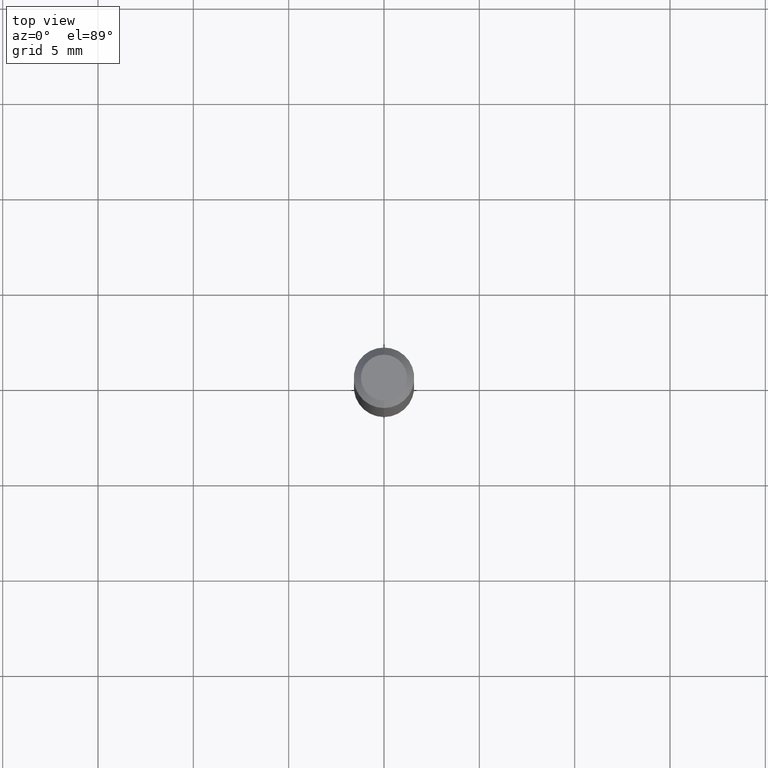
[diagram: clean part render]
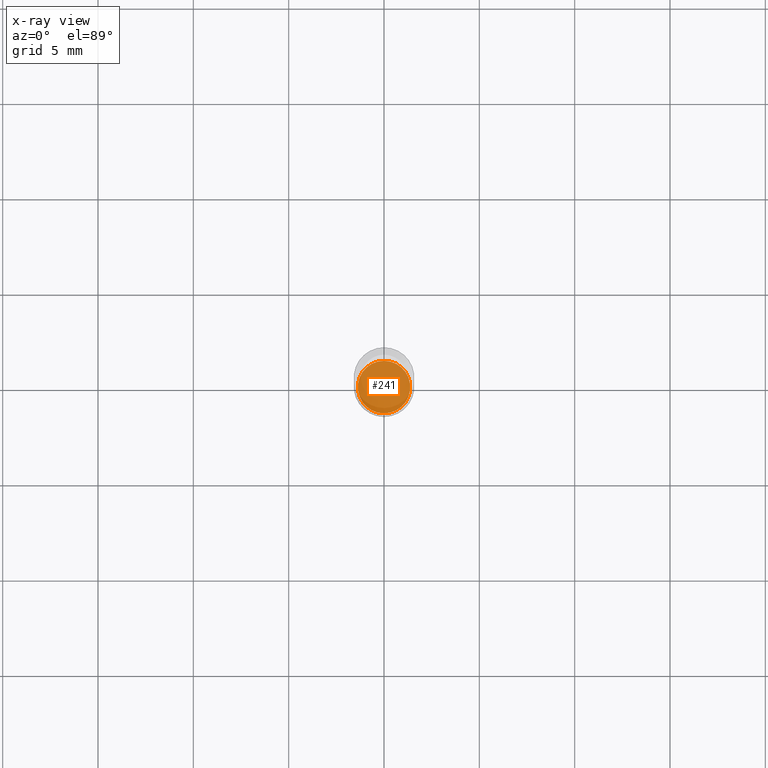
[diagram: x-ray — body ghosted, one internal face saturated and labeled with its STEP entity id]
A machine part, top view, then the same camera in x-ray: the body is ghosted and one INTERNAL B-rep face — a face not visible from any outside direction — is saturated and labeled: STEP entity #241.
In plain terms, the highlighted planar face has unit normal (-0, 0, 1).
Its self-contained STEP definition (entity closure, byte-faithful):
#39 = EDGE_CURVE ( 'NONE', #270, #52, #73, .T. ) ;
#42 = CIRCLE ( 'NONE', #417, 0.05419999999999999818 ) ;
#52 = VERTEX_POINT ( 'NONE', #441 ) ;
#58 = CARTESIAN_POINT ( 'NONE',  ( 2.750791567104804618E-29, -3.928433249406443724E-15, -1.125000000000000222 ) ) ;
#73 = CIRCLE ( 'NONE', #356, 0.05419999999999999818 ) ;
#105 = FACE_OUTER_BOUND ( 'NONE', #276, .T. ) ;
#114 = DIRECTION ( 'NONE',  ( -2.445148059648714686E-29, 3.491940666139061088E-15, 1.000000000000000000 ) ) ;
#121 = DIRECTION ( 'NONE',  ( -6.982962677686266711E-15, -1.000000000000000000, 2.520154975705040126E-15 ) ) ;
#175 = PLANE ( 'NONE',  #366 ) ;
#180 = DIRECTION ( 'NONE',  ( -2.445148059648714406E-29, 3.491940666139060694E-15, 1.000000000000000000 ) ) ;
#221 = CARTESIAN_POINT ( 'NONE',  ( -3.784765771305681686E-16, -0.05420000000000392559, -1.125000000000000000 ) ) ;
#227 = ORIENTED_EDGE ( 'NONE', *, *, #39, .F. ) ;
#241 = ADVANCED_FACE ( 'NONE', ( #105 ), #175, .F. ) ;
#248 = CARTESIAN_POINT ( 'NONE',  ( 2.750791567104804618E-29, -3.928433249406443724E-15, -1.125000000000000222 ) ) ;
#270 = VERTEX_POINT ( 'NONE', #221 ) ;
#276 = EDGE_LOOP ( 'NONE', ( #227, #340 ) ) ;
#340 = ORIENTED_EDGE ( 'NONE', *, *, #477, .F. ) ;
#356 = AXIS2_PLACEMENT_3D ( 'NONE', #58, #440, #121 ) ;
#366 = AXIS2_PLACEMENT_3D ( 'NONE', #462, #180, #492 ) ;
#417 = AXIS2_PLACEMENT_3D ( 'NONE', #248, #114, #433 ) ;
#433 = DIRECTION ( 'NONE',  ( -6.982962677686266711E-15, -1.000000000000000000, 2.520154975705040126E-15 ) ) ;
#440 = DIRECTION ( 'NONE',  ( -2.445148059648714686E-29, 3.491940666139061088E-15, 1.000000000000000000 ) ) ;
#441 = CARTESIAN_POINT ( 'NONE',  ( 3.868905196214021993E-16, 0.05419999999999607077, -1.125000000000000222 ) ) ;
#462 = CARTESIAN_POINT ( 'NONE',  ( 2.750791567104804618E-29, -3.928433249406443724E-15, -1.125000000000000222 ) ) ;
#477 = EDGE_CURVE ( 'NONE', #52, #270, #42, .T. ) ;
#492 = DIRECTION ( 'NONE',  ( -6.982962677686265922E-15, -1.000000000000000000, 3.491940666139060694E-15 ) ) ;